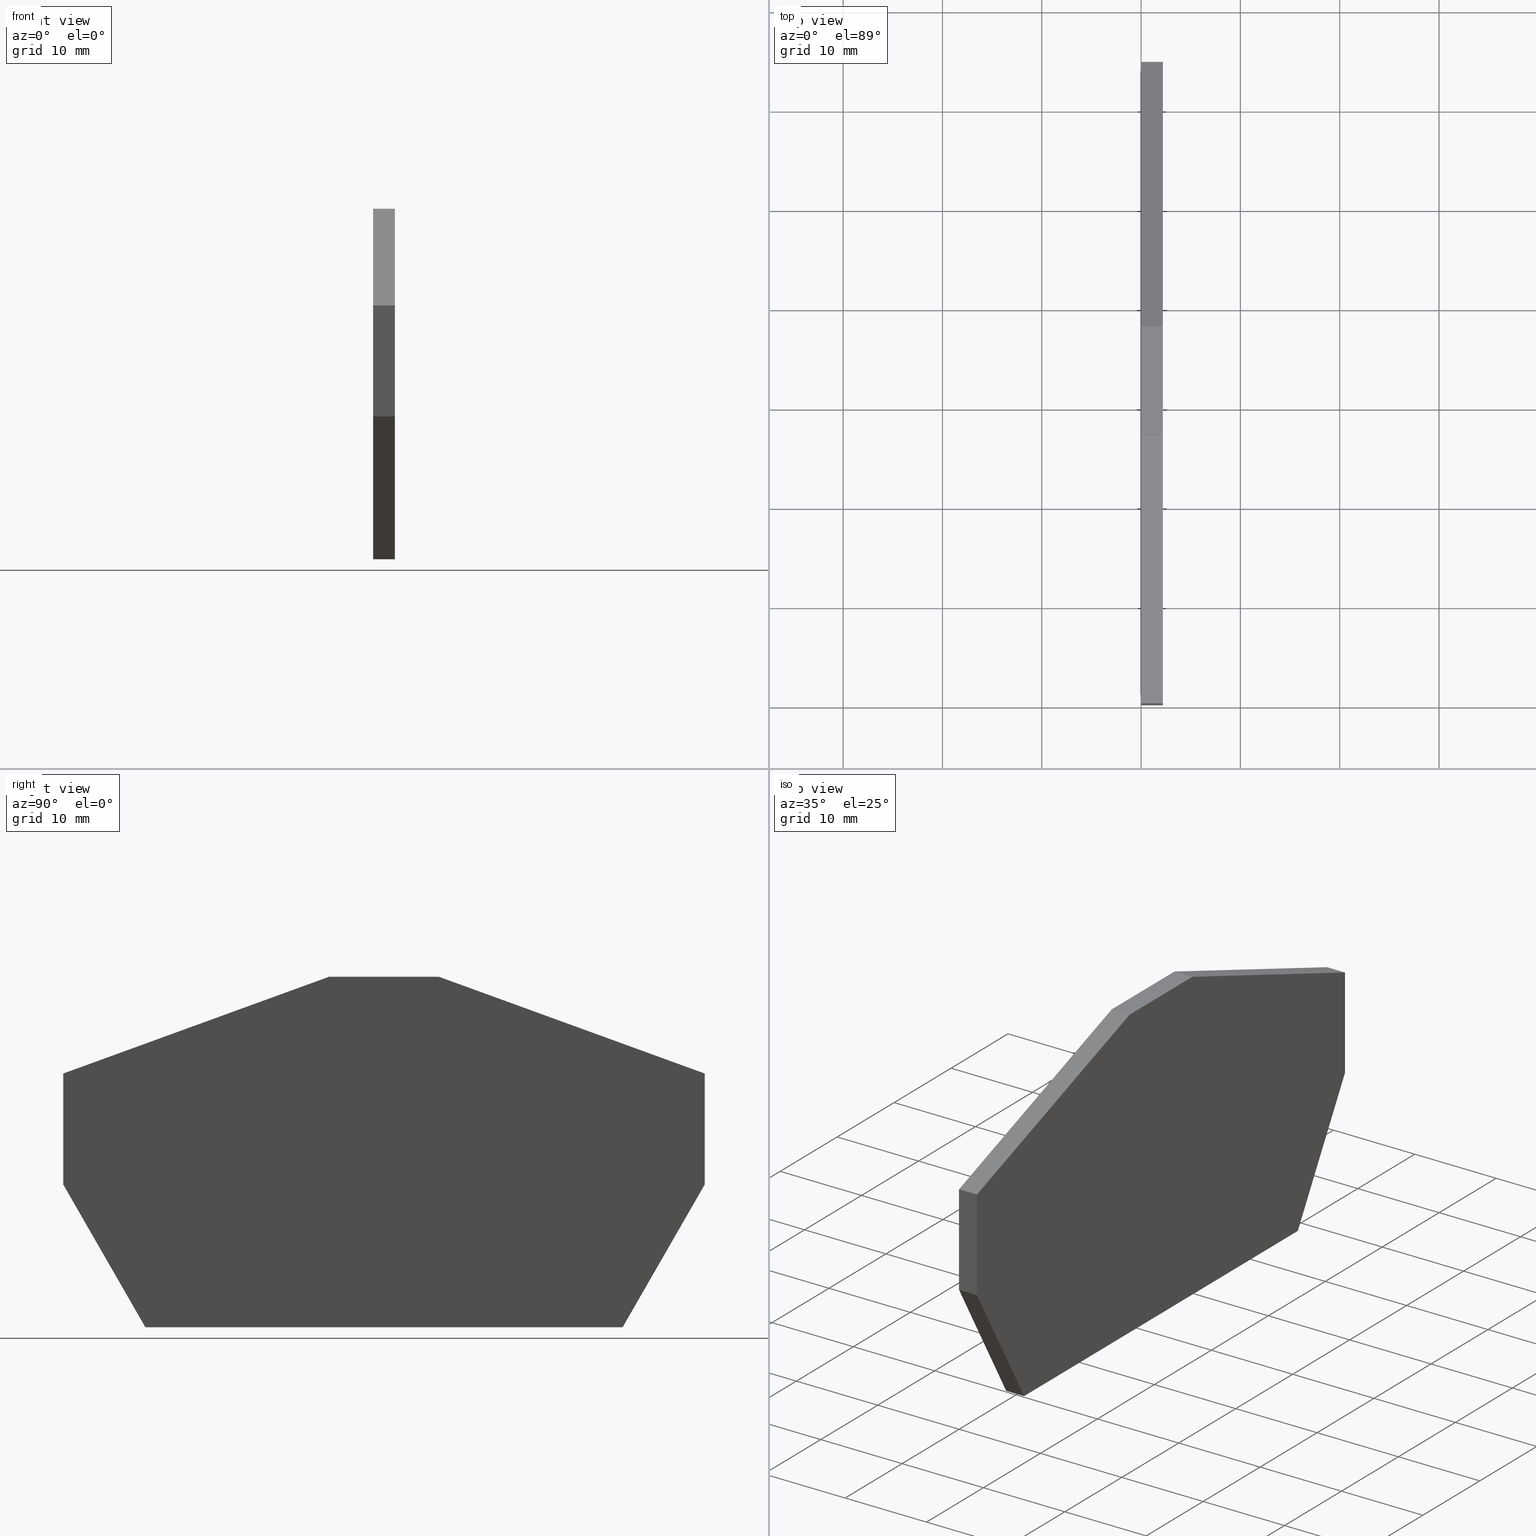
[diagram: canonical four-view strip — front | top / right | iso, engineering-drawing reading convention]
A machine part, canonical four-view strip (front | top / right | iso — engineering-drawing reading convention). The complete STEP part file that produces these views, byte-faithful:
ISO-10303-21;
HEADER;
FILE_DESCRIPTION(('Creo Elements/Direct Modeling STEP Export'),'2;1');
FILE_NAME(
'D:/temp/JobSpoolerServerData/JobServer Files/d255b3f0-177f-4ff5-8808-1e
f3576bc68c/work/output/model.stp','2018-03-20T 7:07:04',(''),(''),
'Creo Elements/Direct Modeling STEP processor for AP214 (Solid Model)',
'Creo Elements/Direct Modeling 18.1I  14-Aug-2016 (C) Parametric Technol
ogy GmbH','');
FILE_SCHEMA(('AUTOMOTIVE_DESIGN { 1 0 10303 214 1 1 1 1 }'));
ENDSEC;
DATA;
#10=CARTESIAN_POINT('',(59.3204928664012,-7.81225460871403,45.32));
#20=DIRECTION('',(1.99157772406956E-28,-7.105427357601E-15,-1.));
#30=DIRECTION('',(-1.,-2.8028964674997E-14,2.24207754291971E-44));
#40=AXIS2_PLACEMENT_3D('',#10,#20,#30);
#50=PLANE('',#40);
#60=CARTESIAN_POINT('',(0.,-24.9985038184946,45.3200000000001));
#70=DIRECTION('',(0.939692620785981,0.342020143325468,
-2.41473507855972E-15));
#80=VECTOR('',#70,1.);
#90=LINE('',#60,#80);
#100=CARTESIAN_POINT('',(33.9321672216761,-12.6482049656694,
45.3200000000001));
#110=VERTEX_POINT('',#100);
#120=CARTESIAN_POINT('',(60.715140245067,-2.90000000000693,45.32));
#130=VERTEX_POINT('',#120);
#140=EDGE_CURVE('',#110,#130,#90,.T.);
#150=ORIENTED_EDGE('',*,*,#140,.F.);
#160=CARTESIAN_POINT('',(0.,-2.9000000000013,45.32));
#170=DIRECTION('',(1.,-9.26522781017574E-14,8.58280664880461E-28));
#180=VECTOR('',#170,1.);
#190=LINE('',#160,#180);
#200=CARTESIAN_POINT('',(71.7491941982856,-2.90000000000795,45.32));
#210=VERTEX_POINT('',#200);
#220=EDGE_CURVE('',#130,#210,#190,.T.);
#230=ORIENTED_EDGE('',*,*,#220,.F.);
#240=CARTESIAN_POINT('',(0.,23.2145710207724,45.3199999999998));
#250=DIRECTION('',(0.939692620785828,-0.342020143325889,
2.41473507855972E-15));
#260=VECTOR('',#250,1.);
#270=LINE('',#240,#260);
#280=CARTESIAN_POINT('',(98.5321672216761,-12.6482049656839,
45.3200000000001));
#290=VERTEX_POINT('',#280);
#300=EDGE_CURVE('',#210,#290,#270,.T.);
#310=ORIENTED_EDGE('',*,*,#300,.F.);
#320=CARTESIAN_POINT('',(98.5321672216789,0.,45.32));
#330=DIRECTION('',(2.2374468138856E-13,1.,-7.105427357601E-15));
#340=VECTOR('',#330,1.);
#350=LINE('',#320,#340);
#360=CARTESIAN_POINT('',(98.5321672216736,-23.8197560553673,
45.3200000000001));
#370=VERTEX_POINT('',#360);
#380=EDGE_CURVE('',#370,#290,#350,.T.);
#390=ORIENTED_EDGE('',*,*,#380,.T.);
#400=CARTESIAN_POINT('',(112.239848664921,0.,45.32));
#410=DIRECTION('',(-0.498780693240312,-0.866728227330063,
6.16173778666962E-15));
#420=VECTOR('',#410,1.);
#430=LINE('',#400,#420);
#440=CARTESIAN_POINT('',(90.2566919140678,-38.2000000000124,
45.3200000000002));
#450=VERTEX_POINT('',#440);
#460=EDGE_CURVE('',#370,#450,#430,.T.);
#470=ORIENTED_EDGE('',*,*,#460,.F.);
#480=CARTESIAN_POINT('',(0.,-38.1999999999922,45.3200000000002));
#490=DIRECTION('',(1.,-2.23752475534467E-13,1.79229197666214E-27));
#500=VECTOR('',#490,1.);
#510=LINE('',#480,#500);
#520=CARTESIAN_POINT('',(42.2076425292826,-38.2000000000016,
45.3200000000002));
#530=VERTEX_POINT('',#520);
#540=EDGE_CURVE('',#530,#450,#510,.T.);
#550=ORIENTED_EDGE('',*,*,#540,.T.);
#560=CARTESIAN_POINT('',(20.2244857784315,0.,45.32));
#570=DIRECTION('',(-0.498780693240377,0.866728227330026,
-6.16173778666962E-15));
#580=VECTOR('',#570,1.);
#590=LINE('',#560,#580);
#600=CARTESIAN_POINT('',(33.9321672216736,-23.8197560553535,
45.3200000000001));
#610=VERTEX_POINT('',#600);
#620=EDGE_CURVE('',#530,#610,#590,.T.);
#630=ORIENTED_EDGE('',*,*,#620,.F.);
#640=CARTESIAN_POINT('',(33.9321672216789,0.,45.32));
#650=DIRECTION('',(-2.2374468138856E-13,-1.,7.105427357601E-15));
#660=VECTOR('',#650,1.);
#670=LINE('',#640,#660);
#680=EDGE_CURVE('',#110,#610,#670,.T.);
#690=ORIENTED_EDGE('',*,*,#680,.T.);
#700=EDGE_LOOP('',(#690,#630,#550,#470,#390,#310,#230,#150));
#710=FACE_OUTER_BOUND('',#700,.T.);
#720=ADVANCED_FACE('',(#710),#50,.F.);
#730=COLOUR_RGB('',0.560784339904785,0.588235318660736,0.600000023841858
);
#740=FILL_AREA_STYLE_COLOUR('',#730);
#750=FILL_AREA_STYLE('',(#740));
#760=SURFACE_STYLE_FILL_AREA(#750);
#770=SURFACE_SIDE_STYLE('',(#760));
#780=SURFACE_STYLE_USAGE(.BOTH.,#770);
#790=PRESENTATION_STYLE_ASSIGNMENT((#780));
#800=CARTESIAN_POINT('',(59.3204928664012,-7.81225460871404,43.12));
#810=DIRECTION('',(1.99157772406956E-28,-7.105427357601E-15,-1.));
#820=DIRECTION('',(-1.,-2.8028964674997E-14,2.24207754291971E-44));
#830=AXIS2_PLACEMENT_3D('',#800,#810,#820);
#840=PLANE('',#830);
#850=CARTESIAN_POINT('',(33.9321672216789,0.,43.12));
#860=DIRECTION('',(-2.2374468138856E-13,-1.,7.105427357601E-15));
#870=VECTOR('',#860,1.);
#880=LINE('',#850,#870);
#890=CARTESIAN_POINT('',(33.9321672216761,-12.6482049656694,
43.1200000000001));
#900=VERTEX_POINT('',#890);
#910=CARTESIAN_POINT('',(33.9321672216736,-23.8197560553535,
43.1200000000001));
#920=VERTEX_POINT('',#910);
#930=EDGE_CURVE('',#900,#920,#880,.T.);
#940=ORIENTED_EDGE('',*,*,#930,.F.);
#950=CARTESIAN_POINT('',(20.2244857784315,0.,43.12));
#960=DIRECTION('',(-0.498780693240377,0.866728227330026,
-6.16173778666962E-15));
#970=VECTOR('',#960,1.);
#980=LINE('',#950,#970);
#990=CARTESIAN_POINT('',(42.2076425292826,-38.2000000000017,
43.1200000000002));
#1000=VERTEX_POINT('',#990);
#1010=EDGE_CURVE('',#1000,#920,#980,.T.);
#1020=ORIENTED_EDGE('',*,*,#1010,.T.);
#1030=CARTESIAN_POINT('',(0.,-38.1999999999922,43.1200000000002));
#1040=DIRECTION('',(1.,-2.23752475534467E-13,1.79229197666214E-27));
#1050=VECTOR('',#1040,1.);
#1060=LINE('',#1030,#1050);
#1070=CARTESIAN_POINT('',(90.2566919140678,-38.2000000000124,
43.1200000000002));
#1080=VERTEX_POINT('',#1070);
#1090=EDGE_CURVE('',#1000,#1080,#1060,.T.);
#1100=ORIENTED_EDGE('',*,*,#1090,.F.);
#1110=CARTESIAN_POINT('',(112.239848664921,0.,43.12));
#1120=DIRECTION('',(-0.498780693240312,-0.866728227330063,
6.16173778666962E-15));
#1130=VECTOR('',#1120,1.);
#1140=LINE('',#1110,#1130);
#1150=CARTESIAN_POINT('',(98.5321672216736,-23.8197560553673,
43.1200000000001));
#1160=VERTEX_POINT('',#1150);
#1170=EDGE_CURVE('',#1160,#1080,#1140,.T.);
#1180=ORIENTED_EDGE('',*,*,#1170,.T.);
#1190=CARTESIAN_POINT('',(98.5321672216789,0.,43.12));
#1200=DIRECTION('',(2.2374468138856E-13,1.,-7.105427357601E-15));
#1210=VECTOR('',#1200,1.);
#1220=LINE('',#1190,#1210);
#1230=CARTESIAN_POINT('',(98.5321672216761,-12.6482049656839,
43.1200000000001));
#1240=VERTEX_POINT('',#1230);
#1250=EDGE_CURVE('',#1160,#1240,#1220,.T.);
#1260=ORIENTED_EDGE('',*,*,#1250,.F.);
#1270=CARTESIAN_POINT('',(0.,23.2145710207723,43.1199999999998));
#1280=DIRECTION('',(0.939692620785828,-0.342020143325889,
2.41473507855972E-15));
#1290=VECTOR('',#1280,1.);
#1300=LINE('',#1270,#1290);
#1310=CARTESIAN_POINT('',(71.7491941982856,-2.90000000000797,43.12));
#1320=VERTEX_POINT('',#1310);
#1330=EDGE_CURVE('',#1320,#1240,#1300,.T.);
#1340=ORIENTED_EDGE('',*,*,#1330,.T.);
#1350=CARTESIAN_POINT('',(0.,-2.90000000000132,43.12));
#1360=DIRECTION('',(1.,-9.26522781017574E-14,8.58280664880461E-28));
#1370=VECTOR('',#1360,1.);
#1380=LINE('',#1350,#1370);
#1390=CARTESIAN_POINT('',(60.715140245067,-2.90000000000694,43.12));
#1400=VERTEX_POINT('',#1390);
#1410=EDGE_CURVE('',#1400,#1320,#1380,.T.);
#1420=ORIENTED_EDGE('',*,*,#1410,.T.);
#1430=CARTESIAN_POINT('',(0.,-24.9985038184946,43.1200000000001));
#1440=DIRECTION('',(0.939692620785981,0.342020143325468,
-2.41473507855972E-15));
#1450=VECTOR('',#1440,1.);
#1460=LINE('',#1430,#1450);
#1470=EDGE_CURVE('',#900,#1400,#1460,.T.);
#1480=ORIENTED_EDGE('',*,*,#1470,.T.);
#1490=EDGE_LOOP('',(#1480,#1420,#1340,#1260,#1180,#1100,#1020,#940));
#1500=FACE_OUTER_BOUND('',#1490,.T.);
#1510=ADVANCED_FACE('',(#1500),#840,.T.);
#1520=COLOUR_RGB('',0.560784339904785,0.588235318660736,
0.600000023841858);
#1530=FILL_AREA_STYLE_COLOUR('',#1520);
#1540=FILL_AREA_STYLE('',(#1530));
#1550=SURFACE_STYLE_FILL_AREA(#1540);
#1560=SURFACE_SIDE_STYLE('',(#1550));
#1570=SURFACE_STYLE_USAGE(.BOTH.,#1560);
#1580=PRESENTATION_STYLE_ASSIGNMENT((#1570));
#1590=CARTESIAN_POINT('',(43.9425092070536,-38.200000000002,
45.3200000000002));
#1600=DIRECTION('',(-2.23752475534467E-13,-1.,7.105427357601E-15));
#1610=DIRECTION('',(1.,-2.23752475534467E-13,1.78901473340051E-27));
#1620=AXIS2_PLACEMENT_3D('',#1590,#1600,#1610);
#1630=PLANE('',#1620);
#1640=CARTESIAN_POINT('',(90.2566919140678,-38.2000000000127,0.));
#1650=DIRECTION('',(-1.99324924233245E-28,7.105427357601E-15,1.));
#1660=VECTOR('',#1650,1.);
#1670=LINE('',#1640,#1660);
#1680=EDGE_CURVE('',#1080,#450,#1670,.T.);
#1690=ORIENTED_EDGE('',*,*,#1680,.T.);
#1700=ORIENTED_EDGE('',*,*,#1090,.T.);
#1710=CARTESIAN_POINT('',(42.2076425292825,-38.200000000002,0.));
#1720=DIRECTION('',(-1.9841476476192E-28,7.105427357601E-15,1.));
#1730=VECTOR('',#1720,1.);
#1740=LINE('',#1710,#1730);
#1750=EDGE_CURVE('',#1000,#530,#1740,.T.);
#1760=ORIENTED_EDGE('',*,*,#1750,.F.);
#1770=ORIENTED_EDGE('',*,*,#540,.F.);
#1780=EDGE_LOOP('',(#1770,#1760,#1700,#1690));
#1790=FACE_OUTER_BOUND('',#1780,.T.);
#1800=ADVANCED_FACE('',(#1790),#1630,.T.);
#1810=COLOUR_RGB('',0.560784339904785,0.588235318660736,
0.600000023841858);
#1820=FILL_AREA_STYLE_COLOUR('',#1810);
#1830=FILL_AREA_STYLE('',(#1820));
#1840=SURFACE_STYLE_FILL_AREA(#1830);
#1850=SURFACE_SIDE_STYLE('',(#1840));
#1860=SURFACE_STYLE_USAGE(.BOTH.,#1850);
#1870=PRESENTATION_STYLE_ASSIGNMENT((#1860));
#1880=CARTESIAN_POINT('',(71.5728672175785,-2.90000000000793,45.32));
#1890=DIRECTION('',(9.26522781017574E-14,1.,-7.105427357601E-15));
#1900=DIRECTION('',(-1.,9.26522781017574E-14,-8.5749180397524E-28));
#1910=AXIS2_PLACEMENT_3D('',#1880,#1890,#1900);
#1920=PLANE('',#1910);
#1930=CARTESIAN_POINT('',(60.7151402450669,-2.90000000000725,0.));
#1940=DIRECTION('',(-1.98501003465636E-28,7.105427357601E-15,1.));
#1950=VECTOR('',#1940,1.);
#1960=LINE('',#1930,#1950);
#1970=EDGE_CURVE('',#1400,#130,#1960,.T.);
#1980=ORIENTED_EDGE('',*,*,#1970,.T.);
#1990=ORIENTED_EDGE('',*,*,#1410,.F.);
#2000=CARTESIAN_POINT('',(71.7491941982856,-2.90000000000827,0.));
#2010=DIRECTION('',(-1.9835684877888E-28,7.105427357601E-15,1.));
#2020=VECTOR('',#2010,1.);
#2030=LINE('',#2000,#2020);
#2040=EDGE_CURVE('',#1320,#210,#2030,.T.);
#2050=ORIENTED_EDGE('',*,*,#2040,.F.);
#2060=ORIENTED_EDGE('',*,*,#220,.T.);
#2070=EDGE_LOOP('',(#2060,#2050,#1990,#1980));
#2080=FACE_OUTER_BOUND('',#2070,.T.);
#2090=ADVANCED_FACE('',(#2080),#1920,.T.);
#2100=COLOUR_RGB('',0.560784339904785,0.588235318660736,
0.600000023841858);
#2110=FILL_AREA_STYLE_COLOUR('',#2100);
#2120=FILL_AREA_STYLE('',(#2110));
#2130=SURFACE_STYLE_FILL_AREA(#2120);
#2140=SURFACE_SIDE_STYLE('',(#2130));
#2150=SURFACE_STYLE_USAGE(.BOTH.,#2140);
#2160=PRESENTATION_STYLE_ASSIGNMENT((#2150));
#2170=CARTESIAN_POINT('',(60.5494470824522,-2.96030737922009,45.32));
#2180=DIRECTION('',(-0.342020143325468,0.939692620785981,
-6.67691765546856E-15));
#2190=DIRECTION('',(-0.939692620785981,-0.342020143325468,
2.43019928323521E-15));
#2200=AXIS2_PLACEMENT_3D('',#2170,#2180,#2190);
#2210=PLANE('',#2200);
#2220=CARTESIAN_POINT('',(33.9321672216761,-12.6482049656697,0.));
#2230=DIRECTION('',(-1.99798201336921E-28,7.105427357601E-15,1.));
#2240=VECTOR('',#2230,1.);
#2250=LINE('',#2220,#2240);
#2260=EDGE_CURVE('',#900,#110,#2250,.T.);
#2270=ORIENTED_EDGE('',*,*,#2260,.T.);
#2280=ORIENTED_EDGE('',*,*,#1470,.F.);
#2290=ORIENTED_EDGE('',*,*,#1970,.F.);
#2300=ORIENTED_EDGE('',*,*,#140,.T.);
#2310=EDGE_LOOP('',(#2300,#2290,#2280,#2270));
#2320=FACE_OUTER_BOUND('',#2310,.T.);
#2330=ADVANCED_FACE('',(#2320),#2210,.T.);
#2340=COLOUR_RGB('',0.560784339904785,0.588235318660736,
0.600000023841858);
#2350=FILL_AREA_STYLE_COLOUR('',#2340);
#2360=FILL_AREA_STYLE('',(#2350));
#2370=SURFACE_STYLE_FILL_AREA(#2360);
#2380=SURFACE_SIDE_STYLE('',(#2370));
#2390=SURFACE_STYLE_USAGE(.BOTH.,#2380);
#2400=PRESENTATION_STYLE_ASSIGNMENT((#2390));
#2410=CARTESIAN_POINT('',(98.4005712503412,-12.6003079491686,
45.3200000000001));
#2420=DIRECTION('',(0.342020143325889,0.939692620785828,
-6.67691765546734E-15));
#2430=DIRECTION('',(-0.939692620785828,0.342020143325889,
-2.43019928323857E-15));
#2440=AXIS2_PLACEMENT_3D('',#2410,#2420,#2430);
#2450=PLANE('',#2440);
#2460=ORIENTED_EDGE('',*,*,#2040,.T.);
#2470=ORIENTED_EDGE('',*,*,#1330,.F.);
#2480=CARTESIAN_POINT('',(98.5321672216761,-12.6482049656842,0.));
#2490=DIRECTION('',(-1.99378457216465E-28,7.105427357601E-15,1.));
#2500=VECTOR('',#2490,1.);
#2510=LINE('',#2480,#2500);
#2520=EDGE_CURVE('',#1240,#290,#2510,.T.);
#2530=ORIENTED_EDGE('',*,*,#2520,.F.);
#2540=ORIENTED_EDGE('',*,*,#300,.T.);
#2550=EDGE_LOOP('',(#2540,#2530,#2470,#2460));
#2560=FACE_OUTER_BOUND('',#2550,.T.);
#2570=ADVANCED_FACE('',(#2560),#2450,.T.);
#2580=COLOUR_RGB('',0.560784339904785,0.588235318660736,
0.600000023841858);
#2590=FILL_AREA_STYLE_COLOUR('',#2580);
#2600=FILL_AREA_STYLE('',(#2590));
#2610=SURFACE_STYLE_FILL_AREA(#2600);
#2620=SURFACE_SIDE_STYLE('',(#2610));
#2630=SURFACE_STYLE_USAGE(.BOTH.,#2620);
#2640=PRESENTATION_STYLE_ASSIGNMENT((#2630));
#2650=CARTESIAN_POINT('',(33.932167221676,-12.7882464733114,
45.3200000000001));
#2660=DIRECTION('',(-1.,2.2374468138856E-13,-1.78895935266295E-27));
#2670=DIRECTION('',(-2.2374468138856E-13,-1.,7.105427357601E-15));
#2680=AXIS2_PLACEMENT_3D('',#2650,#2660,#2670);
#2690=PLANE('',#2680);
#2700=ORIENTED_EDGE('',*,*,#680,.F.);
#2710=CARTESIAN_POINT('',(33.9321672216736,-23.8197560553538,0.));
#2720=DIRECTION('',(-1.99278912365413E-28,7.105427357601E-15,1.));
#2730=VECTOR('',#2720,1.);
#2740=LINE('',#2710,#2730);
#2750=EDGE_CURVE('',#920,#610,#2740,.T.);
#2760=ORIENTED_EDGE('',*,*,#2750,.T.);
#2770=ORIENTED_EDGE('',*,*,#930,.T.);
#2780=ORIENTED_EDGE('',*,*,#2260,.F.);
#2790=EDGE_LOOP('',(#2780,#2770,#2760,#2700));
#2800=FACE_OUTER_BOUND('',#2790,.T.);
#2810=ADVANCED_FACE('',(#2800),#2690,.T.);
#2820=COLOUR_RGB('',0.560784339904785,0.588235318660736,
0.600000023841858);
#2830=FILL_AREA_STYLE_COLOUR('',#2820);
#2840=FILL_AREA_STYLE('',(#2830));
#2850=SURFACE_STYLE_FILL_AREA(#2840);
#2860=SURFACE_SIDE_STYLE('',(#2850));
#2870=SURFACE_STYLE_USAGE(.BOTH.,#2860);
#2880=PRESENTATION_STYLE_ASSIGNMENT((#2870));
#2890=CARTESIAN_POINT('',(98.5321672216737,-23.2853657933703,
45.3200000000001));
#2900=DIRECTION('',(1.,-2.2374468138856E-13,1.78895935266295E-27));
#2910=DIRECTION('',(2.2374468138856E-13,1.,-7.105427357601E-15));
#2920=AXIS2_PLACEMENT_3D('',#2890,#2900,#2910);
#2930=PLANE('',#2920);
#2940=ORIENTED_EDGE('',*,*,#380,.F.);
#2950=ORIENTED_EDGE('',*,*,#2520,.T.);
#2960=ORIENTED_EDGE('',*,*,#1250,.T.);
#2970=CARTESIAN_POINT('',(98.5321672216736,-23.8197560553676,0.));
#2980=DIRECTION('',(-1.99081215031897E-28,7.105427357601E-15,1.));
#2990=VECTOR('',#2980,1.);
#3000=LINE('',#2970,#2990);
#3010=EDGE_CURVE('',#1160,#370,#3000,.T.);
#3020=ORIENTED_EDGE('',*,*,#3010,.F.);
#3030=EDGE_LOOP('',(#3020,#2960,#2950,#2940));
#3040=FACE_OUTER_BOUND('',#3030,.T.);
#3050=ADVANCED_FACE('',(#3040),#2930,.T.);
#3060=COLOUR_RGB('',0.560784339904785,0.588235318660736,
0.600000023841858);
#3070=FILL_AREA_STYLE_COLOUR('',#3060);
#3080=FILL_AREA_STYLE('',(#3070));
#3090=SURFACE_STYLE_FILL_AREA(#3080);
#3100=SURFACE_SIDE_STYLE('',(#3090));
#3110=SURFACE_STYLE_USAGE(.BOTH.,#3100);
#3120=PRESENTATION_STYLE_ASSIGNMENT((#3110));
#3130=CARTESIAN_POINT('',(34.1987107670136,-24.2829271798371,
45.3200000000001));
#3140=DIRECTION('',(-0.866728227330026,-0.498780693240377,
3.54404998319319E-15));
#3150=DIRECTION('',(0.498780693240377,-0.866728227330026,
6.15847445807589E-15));
#3160=AXIS2_PLACEMENT_3D('',#3130,#3140,#3150);
#3170=PLANE('',#3160);
#3180=ORIENTED_EDGE('',*,*,#1750,.T.);
#3190=ORIENTED_EDGE('',*,*,#1010,.F.);
#3200=ORIENTED_EDGE('',*,*,#2750,.F.);
#3210=ORIENTED_EDGE('',*,*,#620,.T.);
#3220=EDGE_LOOP('',(#3210,#3200,#3190,#3180));
#3230=FACE_OUTER_BOUND('',#3220,.T.);
#3240=ADVANCED_FACE('',(#3230),#3170,.T.);
#3250=COLOUR_RGB('',0.560784339904785,0.588235318660736,
0.600000023841858);
#3260=FILL_AREA_STYLE_COLOUR('',#3250);
#3270=FILL_AREA_STYLE('',(#3260));
#3280=SURFACE_STYLE_FILL_AREA(#3270);
#3290=SURFACE_SIDE_STYLE('',(#3280));
#3300=SURFACE_STYLE_USAGE(.BOTH.,#3290);
#3310=PRESENTATION_STYLE_ASSIGNMENT((#3300));
#3320=CARTESIAN_POINT('',(91.1220099182865,-36.6963420797329,
45.3200000000002));
#3330=DIRECTION('',(0.866728227330063,-0.498780693240312,
3.54404998319308E-15));
#3340=DIRECTION('',(0.498780693240312,0.866728227330063,
-6.15847445807595E-15));
#3350=AXIS2_PLACEMENT_3D('',#3320,#3330,#3340);
#3360=PLANE('',#3350);
#3370=ORIENTED_EDGE('',*,*,#460,.T.);
#3380=ORIENTED_EDGE('',*,*,#3010,.T.);
#3390=ORIENTED_EDGE('',*,*,#1170,.F.);
#3400=ORIENTED_EDGE('',*,*,#1680,.F.);
#3410=EDGE_LOOP('',(#3400,#3390,#3380,#3370));
#3420=FACE_OUTER_BOUND('',#3410,.T.);
#3430=ADVANCED_FACE('',(#3420),#3360,.T.);
#3440=COLOUR_RGB('',0.560784339904785,0.588235318660736,
0.600000023841858);
#3450=FILL_AREA_STYLE_COLOUR('',#3440);
#3460=FILL_AREA_STYLE('',(#3450));
#3470=SURFACE_STYLE_FILL_AREA(#3460);
#3480=SURFACE_SIDE_STYLE('',(#3470));
#3490=SURFACE_STYLE_USAGE(.BOTH.,#3480);
#3500=PRESENTATION_STYLE_ASSIGNMENT((#3490));
#3510=CLOSED_SHELL('',(#1800,#2090,#2330,#2570,#2810,#3050,#3240,#3430,
#1510,#720));
#3520=MANIFOLD_SOLID_BREP('',#3510);
#3530=CARTESIAN_POINT('',(0.,0.,0.));
#3540=DIRECTION('',(0.,0.,1.));
#3550=DIRECTION('',(1.,0.,0.));
#3560=AXIS2_PLACEMENT_3D('',#3530,#3540,#3550);
#3570=APPLICATION_CONTEXT(' ');
#3580=APPLICATION_PROTOCOL_DEFINITION(' ','automotive_design',1998,#3570
);
#3590=PRODUCT_CONTEXT('',#3570,'mechanical');
#3600=PRODUCT_DEFINITION_CONTEXT('part definition',#3570,'design');
#3610=PRODUCT('d_sts4_twin_l_select','d_sts4_twin_l_select','',(#3590));
#3620=PRODUCT_RELATED_PRODUCT_CATEGORY('part',' ',(#3610));
#3630=PRODUCT_DEFINITION_FORMATION_WITH_SPECIFIED_SOURCE('','',#3610,
.BOUGHT.);
#3640=PRODUCT_DEFINITION('',' ',#3630,#3600);
#3650=PRODUCT_DEFINITION_SHAPE('','',#3640);
#3660=DIMENSIONAL_EXPONENTS(1.,0.,0.,0.,0.,0.,0.);
#3670=DIMENSIONAL_EXPONENTS(0.,0.,0.,0.,0.,0.,0.);
#3680=DIMENSIONAL_EXPONENTS(0.,0.,0.,0.,0.,0.,0.);
#3690=(LENGTH_UNIT() NAMED_UNIT(*) SI_UNIT(.MILLI.,.METRE.));
#3700=(NAMED_UNIT(*) PLANE_ANGLE_UNIT() SI_UNIT($,.RADIAN.));
#3710=(NAMED_UNIT(*) SI_UNIT($,.STERADIAN.) SOLID_ANGLE_UNIT());
#3720=(GEOMETRIC_REPRESENTATION_CONTEXT(3) 
GLOBAL_UNCERTAINTY_ASSIGNED_CONTEXT((#3730)) 
GLOBAL_UNIT_ASSIGNED_CONTEXT((#3690,#3700,#3710)) REPRESENTATION_CONTEXT
('',''));
#3730=UNCERTAINTY_MEASURE_WITH_UNIT(LENGTH_MEASURE(1.E-6),#3690,
'distance_accuracy_value','maximum gap value');
#3740=ADVANCED_BREP_SHAPE_REPRESENTATION('',(#3560,#3520),#3720);
#3750=SHAPE_DEFINITION_REPRESENTATION(#3650,#3740);
#3760=COLOUR_RGB('',0.560784339904785,0.588235318660736,
0.600000023841858);
#3770=FILL_AREA_STYLE_COLOUR('',#3760);
#3780=FILL_AREA_STYLE('',(#3770));
#3790=SURFACE_STYLE_FILL_AREA(#3780);
#3800=SURFACE_SIDE_STYLE('',(#3790));
#3810=SURFACE_STYLE_USAGE(.BOTH.,#3800);
#3820=PRESENTATION_STYLE_ASSIGNMENT((#3810));
#3830=STYLED_ITEM('',(#3820),#3520);
#3840=OVER_RIDING_STYLED_ITEM('',(#790),#720,#3830);
#3850=OVER_RIDING_STYLED_ITEM('',(#1580),#1510,#3830);
#3860=OVER_RIDING_STYLED_ITEM('',(#1870),#1800,#3830);
#3870=OVER_RIDING_STYLED_ITEM('',(#2160),#2090,#3830);
#3880=OVER_RIDING_STYLED_ITEM('',(#2400),#2330,#3830);
#3890=OVER_RIDING_STYLED_ITEM('',(#2640),#2570,#3830);
#3900=OVER_RIDING_STYLED_ITEM('',(#2880),#2810,#3830);
#3910=OVER_RIDING_STYLED_ITEM('',(#3120),#3050,#3830);
#3920=OVER_RIDING_STYLED_ITEM('',(#3310),#3240,#3830);
#3930=OVER_RIDING_STYLED_ITEM('',(#3500),#3430,#3830);
#3940=DRAUGHTING_MODEL('',(#3830,#3840,#3850,#3860,#3870,#3880,#3890,
#3900,#3910,#3920,#3930),#3720);
#3950=CARTESIAN_POINT('',(-43.12,-33.9321672216789,38.1999999999922));
#3960=DIRECTION('',(1.,1.22948526361447E-16,-7.10889680455293E-15));
#3970=DIRECTION('',(-1.22948526359856E-16,1.,2.237654506132E-13));
#3980=AXIS2_PLACEMENT_3D('',#3950,#3960,#3970);
#3990=ITEM_DEFINED_TRANSFORMATION('d_sts4_twin_l_select','',#3560,#3980)
;
#4000=APPLICATION_CONTEXT(' ');
#4010=APPLICATION_PROTOCOL_DEFINITION(' ','automotive_design',1998,#4000
);
#4020=PRODUCT_CONTEXT('',#4000,'mechanical');
#4030=PRODUCT_DEFINITION_CONTEXT('part definition',#4000,'design');
#4040=PRODUCT('d_sts4_twin_l_select','d_sts4_twin_l_select','',(#4020));
#4050=PRODUCT_RELATED_PRODUCT_CATEGORY('part',' ',(#4040));
#4060=PRODUCT_DEFINITION_FORMATION_WITH_SPECIFIED_SOURCE('','',#4040,
.BOUGHT.);
#4070=PRODUCT_DEFINITION('',' ',#4060,#4030);
#4080=PRODUCT_DEFINITION_SHAPE('','',#4070);
#4090=DIMENSIONAL_EXPONENTS(1.,0.,0.,0.,0.,0.,0.);
#4100=DIMENSIONAL_EXPONENTS(0.,0.,0.,0.,0.,0.,0.);
#4110=DIMENSIONAL_EXPONENTS(0.,0.,0.,0.,0.,0.,0.);
#4120=(LENGTH_UNIT() NAMED_UNIT(*) SI_UNIT(.MILLI.,.METRE.));
#4130=(NAMED_UNIT(*) PLANE_ANGLE_UNIT() SI_UNIT($,.RADIAN.));
#4140=(NAMED_UNIT(*) SI_UNIT($,.STERADIAN.) SOLID_ANGLE_UNIT());
#4150=(GEOMETRIC_REPRESENTATION_CONTEXT(3) 
GLOBAL_UNCERTAINTY_ASSIGNED_CONTEXT((#4160)) 
GLOBAL_UNIT_ASSIGNED_CONTEXT((#4120,#4130,#4140)) REPRESENTATION_CONTEXT
('',''));
#4160=UNCERTAINTY_MEASURE_WITH_UNIT(LENGTH_MEASURE(1.E-6),#4120,
'distance_accuracy_value','maximum gap value');
#4170=SHAPE_REPRESENTATION('',(#3560,#3980),#4150);
#4180=SHAPE_DEFINITION_REPRESENTATION(#4080,#4170);
#4190=(REPRESENTATION_RELATIONSHIP('','',#3740,#4170) 
REPRESENTATION_RELATIONSHIP_WITH_TRANSFORMATION(#3990) 
SHAPE_REPRESENTATION_RELATIONSHIP());
#4200=NEXT_ASSEMBLY_USAGE_OCCURRENCE('1','','d_sts4_twin_l_select',#4070
,#3640,'');
#4210=PRODUCT_DEFINITION_SHAPE('','',#4200);
#4220=CONTEXT_DEPENDENT_SHAPE_REPRESENTATION(#4190,#4210);
ENDSEC;
END-ISO-10303-21;
